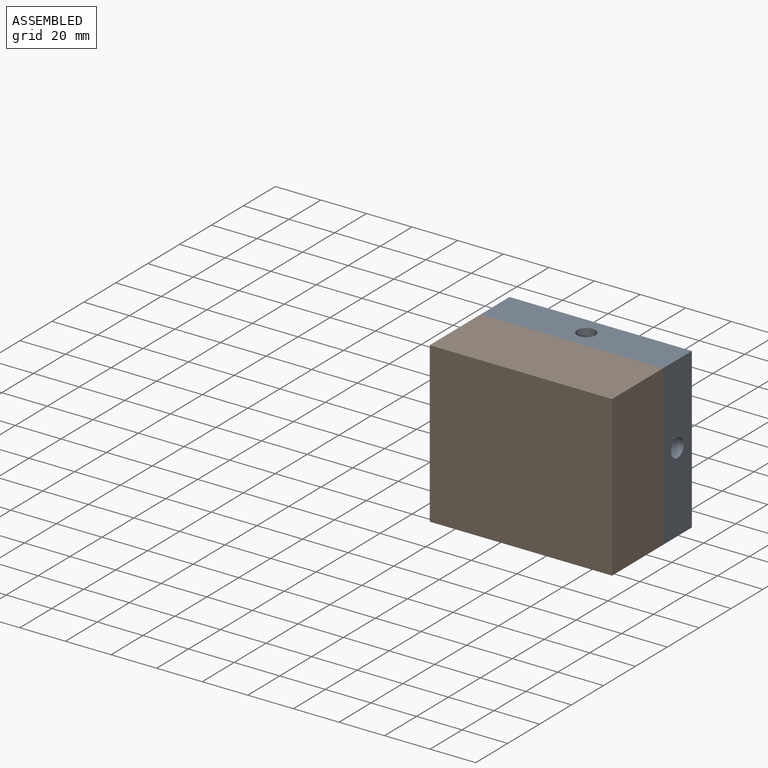
[diagram: assembled view]
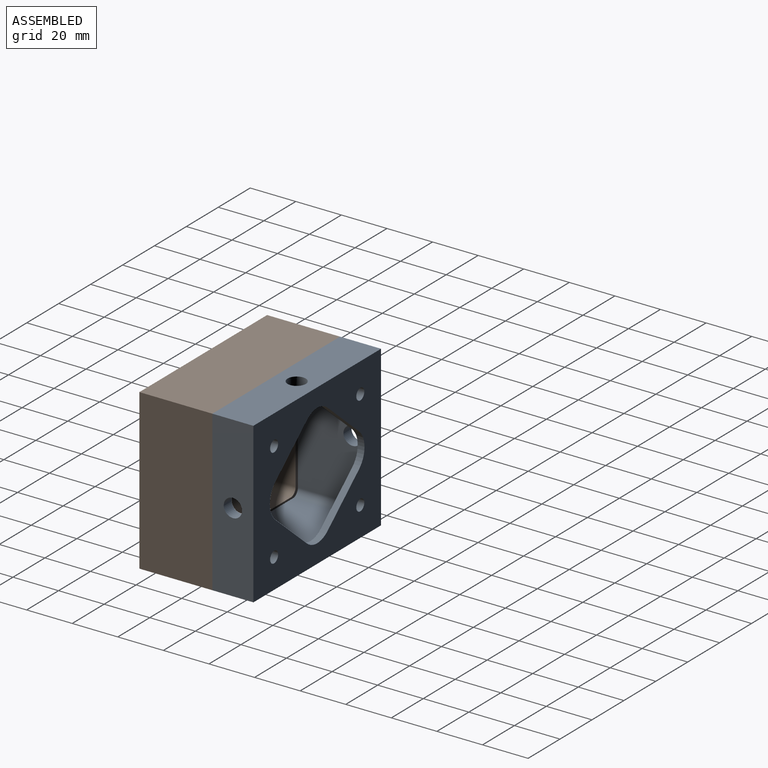
[diagram: assembled view, second angle]
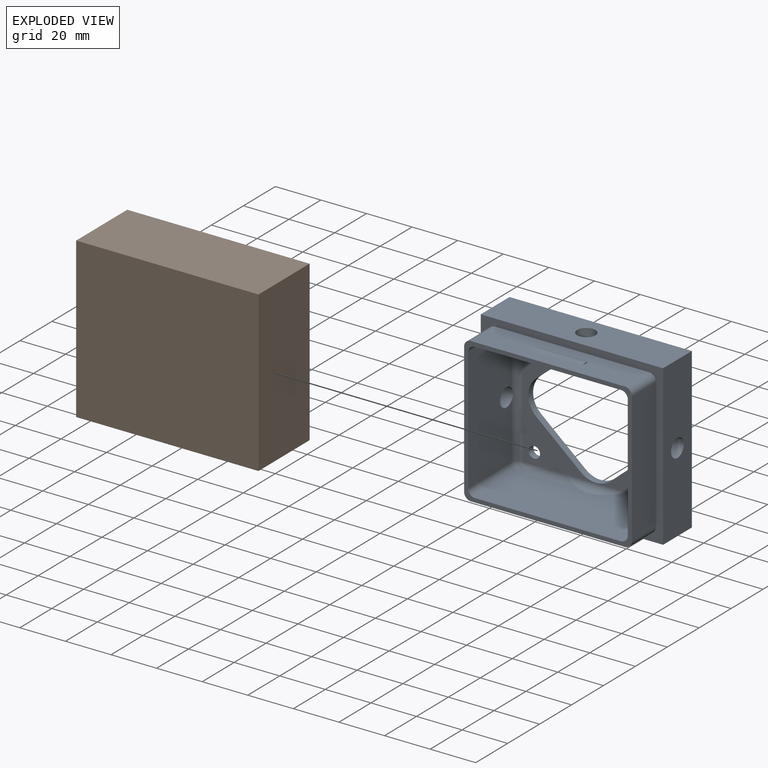
[diagram: exploded view]
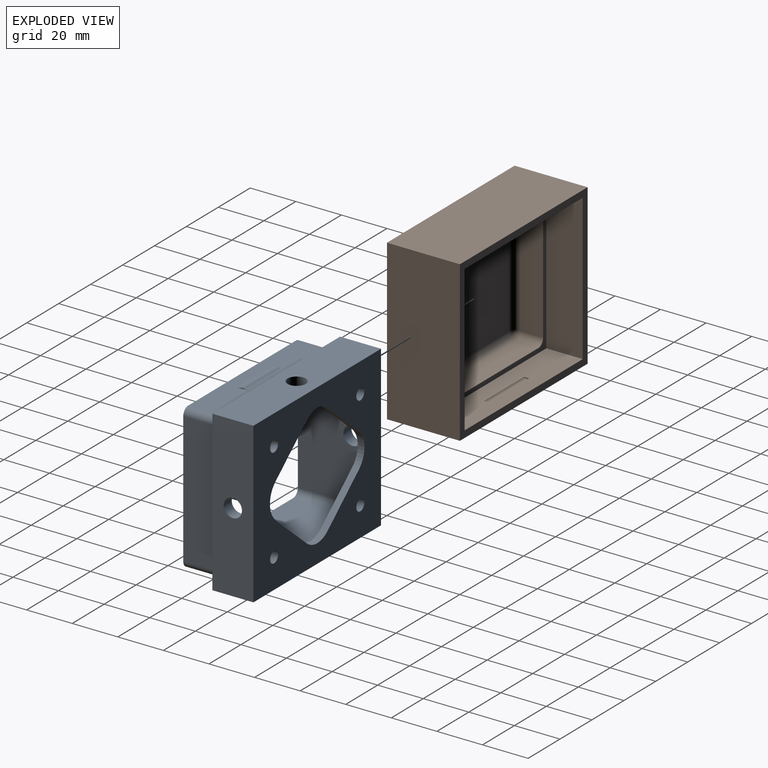
[diagram: exploded view, second angle]
ASSEMBLY  parts=2 mates=3
PART A: 57 faces, bbox 80x33x70 mm
  f0: plane 67.6x15mm, normal (0,0,-1), area 904mm2, adj f3,f15,f38,f39,f48,f49,f50,f51
  f1: plane 64x54mm, normal (0,-1,0), area 1368.1mm2, adj f16,f17,f18,f19,f20,f21,f22,f23
  f2: plane 80x70mm, normal (0,1,0), area 3512.1mm2, adj f4,f5,f6,f11,f16,f17,f18,f19
  f3: plane 80x70mm, normal (0,-1,0), area 926.8mm2, adj f0,f4,f5,f6,f11,f12,f13,f14
  f4: plane 80x18mm, normal (0,0,1), area 1389.7mm2, adj f2,f3,f5,f11,f56
  f5: plane 70x18mm, normal (-1,0,0), area 1209.7mm2, adj f2,f3,f4,f6,f54
  f6: plane 80x18mm, normal (0,0,-1), area 1440mm2, adj f2,f3,f5,f11
  f7: plane 64x27mm, normal (0,0,-1), area 1681.4mm2, adj f15,f24,f25,f26,f56
  f8: plane 54x27mm, normal (-1,0,0), area 1411.4mm2, adj f15,f25,f29,f31,f55
  f9: plane 64x27mm, normal (0,0,1), area 1728mm2, adj f15,f31,f32,f35
  f10: plane 54x27mm, normal (1,0,0), area 1411.4mm2, adj f15,f26,f30,f32,f54
  f11: plane 70x18mm, normal (1,0,0), area 1209.7mm2, adj f2,f3,f4,f6,f55
  f12: plane 57.6x15mm, normal (1,0,0), area 864mm2, adj f3,f15,f36,f39
  f13: plane 67.6x15mm, normal (0,0,1), area 904mm2, adj f3,f15,f36,f37,f45,f46,f52,f53
  f14: plane 57.6x15mm, normal (-1,0,0), area 864mm2, adj f3,f15,f37,f38
  f15: plane 73.6x63.6mm, normal (0,-1,0), area 481mm2, adj f0,f7,f8,f9,f10,f12,f13,f14
  f16: plane 19.63x16.83mm, normal (-0.65,0,-0.76), area 77.6mm2, adj f1,f2,f20,f21
  f17: plane 19.63x16.83mm, normal (0.65,0,-0.76), area 77.6mm2, adj f1,f2,f20,f23
  f18: plane 19.63x16.83mm, normal (0.65,0,0.76), area 77.6mm2, adj f1,f2,f22,f23
  f19: plane 19.63x16.83mm, normal (-0.65,0,0.76), area 77.6mm2, adj f1,f2,f21,f22
  f20: cylinder r=10mm len=13.02mm, axis (0,1,0), area 42.5mm2, adj f1,f2,f16,f17
  f21: cylinder r=10mm len=15.19mm, axis (0,1,0), area 51.7mm2, adj f1,f2,f16,f19
  f22: cylinder r=10mm len=13.02mm, axis (0,1,0), area 42.5mm2, adj f1,f2,f18,f19
  f23: cylinder r=10mm len=15.19mm, axis (0,1,0), area 51.7mm2, adj f1,f2,f17,f18
  f24: cylinder r=3mm len=64mm, axis (-1,0,0), area 297.9mm2, adj f1,f7,f27,f28,f56
  f25: cylinder r=3mm len=27mm, axis (0,-1,0), area 127.2mm2, adj f7,f8,f15,f27
  f26: cylinder r=3mm len=27mm, axis (0,1,0), area 127.2mm2, adj f7,f10,f15,f28
  f27: sphere r=3mm, area 14.1mm2, adj f24,f25,f29
  f28: sphere r=3mm, area 14.1mm2, adj f24,f26,f30
  f29: cylinder r=3mm len=54mm, axis (0,0,1), area 250.8mm2, adj f1,f8,f27,f33,f55
  f30: cylinder r=3mm len=54mm, axis (0,0,-1), area 250.8mm2, adj f1,f10,f28,f34,f54
  f31: cylinder r=3mm len=27mm, axis (0,1,0), area 127.2mm2, adj f8,f9,f15,f33
  f32: cylinder r=3mm len=27mm, axis (0,-1,0), area 127.2mm2, adj f9,f10,f15,f34
  f33: sphere r=3mm, area 14.1mm2, adj f29,f31,f35
  f34: sphere r=3mm, area 14.1mm2, adj f30,f32,f35
  f35: cylinder r=3mm len=64mm, axis (1,0,0), area 301.6mm2, adj f1,f9,f33,f34
  f36: cylinder r=3mm len=15mm, axis (0,1,0), area 70.7mm2, adj f3,f12,f13,f15
  f37: cylinder r=3mm len=15mm, axis (0,1,0), area 70.7mm2, adj f3,f13,f14,f15
  f38: cylinder r=3mm len=15mm, axis (0,1,0), area 70.7mm2, adj f0,f3,f14,f15
  f39: cylinder r=3mm len=15mm, axis (0,1,0), area 70.7mm2, adj f0,f3,f12,f15
  f40: cylinder r=2.5mm len=5mm, axis (0,-1,0), area 47.1mm2, adj f1,f2
  f41: cylinder r=2.5mm len=5mm, axis (0,-1,0), area 47.1mm2, adj f1,f2
  f42: cylinder r=2.5mm len=5mm, axis (0,-1,0), area 47.1mm2, adj f1,f2
  f43: cylinder r=2.5mm len=5mm, axis (0,-1,0), area 47.1mm2, adj f1,f2
  f44: cylinder r=1.5mm len=22mm, axis (-1,0,0), area 26.1mm2, adj f45,f46,f52,f53
  f45: plane 5x0.5mm, normal (1,0,0), area 1mm2, adj f13,f44,f52,f53
  f46: plane 5x0.5mm, normal (-1,0,0), area 1mm2, adj f13,f44,f52,f53
  f47: cylinder r=1.5mm len=22mm, axis (-1,0,0), area 26.1mm2, adj f48,f49,f50,f51
  f48: plane 5x0.5mm, normal (1,0,0), area 1mm2, adj f0,f47,f50,f51
  f49: plane 5x0.5mm, normal (-1,0,0), area 1mm2, adj f0,f47,f50,f51
  f50: cylinder r=5mm len=22mm, axis (-1,0,0), area 43.4mm2, adj f0,f47,f48,f49
  f51: cylinder r=5mm len=22mm, axis (-1,0,0), area 43.4mm2, adj f0,f47,f48,f49
  f52: cylinder r=5mm len=22mm, axis (-1,0,0), area 43.4mm2, adj f13,f44,f45,f46
  f53: cylinder r=5mm len=22mm, axis (-1,0,0), area 43.4mm2, adj f13,f44,f45,f46
  f54: cylinder r=4mm len=8mm, axis (1,0,0), area 126.2mm2, adj f5,f10,f30
  f55: cylinder r=4mm len=8mm, axis (1,0,0), area 126.2mm2, adj f8,f11,f29
  f56: cylinder r=4mm len=8mm, axis (0,0,1), area 126.2mm2, adj f4,f7,f24
PART B: 34 faces, bbox 80x32x70 mm
  f0: plane 80x32mm, normal (0,0,1), area 2560mm2, adj f1,f7,f13,f15
  f1: plane 70x32mm, normal (-1,0,0), area 2240mm2, adj f0,f2,f13,f15
  f2: plane 80x32mm, normal (0,0,-1), area 2560mm2, adj f1,f7,f13,f15
  f3: plane 64x10mm, normal (0,0,-1), area 640mm2, adj f8,f18,f24,f27
  f4: plane 54x10mm, normal (-1,0,0), area 540mm2, adj f8,f21,f25,f27
  f5: plane 64x10mm, normal (0,0,1), area 640mm2, adj f8,f16,f20,f21
  f6: plane 54x10mm, normal (1,0,0), area 540mm2, adj f8,f16,f18,f19
  f7: plane 70x32mm, normal (1,0,0), area 2240mm2, adj f0,f2,f13,f15
  f8: plane 74x64mm, normal (0,1,0), area 543.7mm2, adj f3,f4,f5,f6,f9,f10,f11,f12
  f9: plane 64x16mm, normal (-1,0,0), area 1024mm2, adj f8,f10,f12,f13
  f10: plane 74x16mm, normal (0,0,-1), area 1128.1mm2, adj f8,f9,f11,f13,f31,f32,f33
  f11: plane 64x16mm, normal (1,0,0), area 1024mm2, adj f8,f10,f12,f13
  f12: plane 74x16mm, normal (0,0,1), area 1128.1mm2, adj f8,f9,f11,f13,f28,f29,f30
  f13: plane 80x70mm, normal (0,1,0), area 864mm2, adj f0,f1,f2,f7,f9,f10,f11,f12
  f14: plane 64x54mm, normal (0,1,0), area 3456mm2, adj f19,f20,f24,f25
  f15: plane 80x70mm, normal (0,-1,0), area 5600mm2, adj f0,f1,f2,f7
  f16: cylinder r=3mm len=10mm, axis (0,1,0), area 47.1mm2, adj f5,f6,f8,f17
  f17: sphere r=3mm, area 14.1mm2, adj f16,f19,f20
  f18: cylinder r=3mm len=10mm, axis (0,-1,0), area 47.1mm2, adj f3,f6,f8,f22
  f19: cylinder r=3mm len=54mm, axis (0,0,1), area 254.5mm2, adj f6,f14,f17,f22
  f20: cylinder r=3mm len=64mm, axis (-1,0,0), area 301.6mm2, adj f5,f14,f17,f23
  f21: cylinder r=3mm len=10mm, axis (0,-1,0), area 47.1mm2, adj f4,f5,f8,f23
  f22: sphere r=3mm, area 14.1mm2, adj f18,f19,f24
  f23: sphere r=3mm, area 14.1mm2, adj f20,f21,f25
  f24: cylinder r=3mm len=64mm, axis (1,0,0), area 301.6mm2, adj f3,f14,f22,f26
  f25: cylinder r=3mm len=54mm, axis (0,0,-1), area 254.5mm2, adj f4,f14,f23,f26
  f26: sphere r=3mm, area 14.1mm2, adj f24,f25,f27
  f27: cylinder r=3mm len=10mm, axis (0,1,0), area 47.1mm2, adj f3,f4,f8,f26
  f28: cylinder r=1.5mm len=25mm, axis (1,0,0), area 63.1mm2, adj f12,f29,f30
  f29: plane 2.24x0.5mm, normal (1,0,0), area 0.8mm2, adj f12,f28
  f30: plane 2.24x0.5mm, normal (-1,0,0), area 0.8mm2, adj f12,f28
  f31: cylinder r=1.5mm len=25mm, axis (1,0,0), area 63.1mm2, adj f10,f32,f33
  f32: plane 2.24x0.5mm, normal (1,0,0), area 0.8mm2, adj f10,f31
  f33: plane 2.24x0.5mm, normal (-1,0,0), area 0.8mm2, adj f10,f31
PLACE A t=(11.1,2.25,2.69)mm
PLACE B t=(11.1,28.25,2.69)mm
MATE planar A.f54 <-> B.f1  axis (-1,0,0) through (-28.9,-3.75,2.69)mm
MATE planar A.f3 <-> B.f13  axis (0,-1,0) through (11.1,-12.75,2.69)mm
MATE planar A.f56 <-> B.f0  axis (0,0,1) through (11.1,-3.75,37.69)mm
